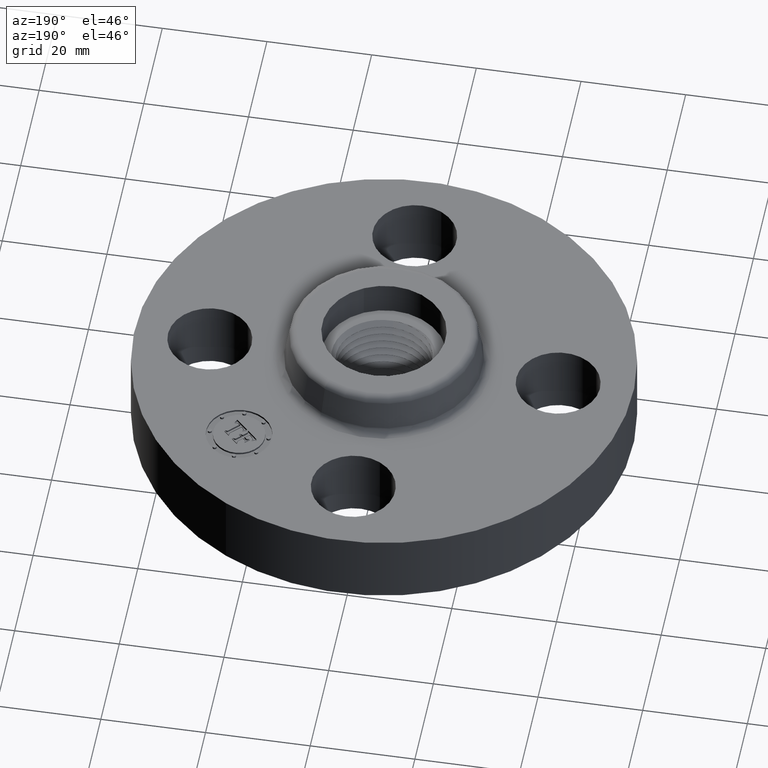
[diagram: clean part render]
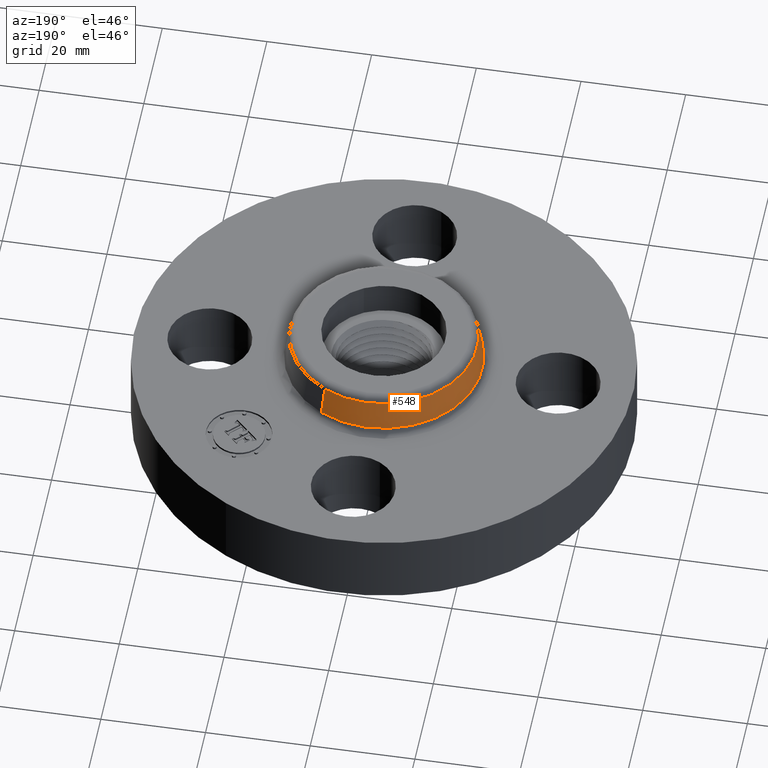
[diagram: same view with one face highlighted and labeled with its STEP entity id]
A machine part, auxiliary view. The second image highlights one B-rep face of the part: STEP entity #548.
In plain terms, the highlighted conical surface has half-angle 10 deg.
Its self-contained STEP definition (entity closure, byte-faithful):
#496=AXIS2_PLACEMENT_3D('Circle Axis2P3D',#494,#495,$) ;
#509=AXIS2_PLACEMENT_3D('Cone Axis2P3D',#506,#507,#508) ;
#539=AXIS2_PLACEMENT_3D('Circle Axis2P3D',#537,#538,$) ;
#467=CARTESIAN_POINT('Vertex',(0.355377782267,0.650514667009,0.609581109342)) ;
#474=CARTESIAN_POINT('Vertex',(-0.355377782267,-0.650514667009,0.609581109342)) ;
#494=CARTESIAN_POINT('Axis2P3D Location',(0.,0.,0.609581109342)) ;
#506=CARTESIAN_POINT('Axis2P3D Location',(0.,0.,0.830418890663)) ;
#511=CARTESIAN_POINT('Line Origine',(0.346043448723,0.633428284067,0.720000000003)) ;
#515=CARTESIAN_POINT('Vertex',(0.336709115179,0.616341901124,0.830418890663)) ;
#522=CARTESIAN_POINT('Vertex',(-0.336709115179,-0.616341901124,0.830418890663)) ;
#525=CARTESIAN_POINT('Line Origine',(-0.346043448723,-0.633428284067,0.720000000003)) ;
#537=CARTESIAN_POINT('Axis2P3D Location',(0.,0.,0.830418890663)) ;
#495=DIRECTION('Axis2P3D Direction',(0.,0.,-0.0393700787402)) ;
#507=DIRECTION('Axis2P3D Direction',(0.,0.,-0.0393700787402)) ;
#508=DIRECTION('Axis2P3D XDirection',(-0.0188750212049,-0.0345504945626,0.)) ;
#512=DIRECTION('Vector Direction',(0.00327761303565,0.00599963041829,-0.03877195878)) ;
#526=DIRECTION('Vector Direction',(-0.00327761303565,-0.00599963041829,-0.03877195878)) ;
#538=DIRECTION('Axis2P3D Direction',(0.,0.,-0.0393700787402)) ;
#513=VECTOR('Line Direction',#512,0.0393700787402) ;
#527=VECTOR('Line Direction',#526,0.0393700787402) ;
#543=ORIENTED_EDGE('',*,*,#498,.F.) ;
#544=ORIENTED_EDGE('',*,*,#529,.T.) ;
#545=ORIENTED_EDGE('',*,*,#541,.T.) ;
#546=ORIENTED_EDGE('',*,*,#517,.F.) ;
#548=ADVANCED_FACE('PartBody',(#547),#510,.T.) ;
#497=CIRCLE('generated circle',#496,0.741257512693) ;
#540=CIRCLE('generated circle',#539,0.702317853486) ;
#510=CONICAL_SURFACE('Cone',#509,0.702317853486,0.174532925199) ;
#498=EDGE_CURVE('',#475,#468,#497,.T.) ;
#517=EDGE_CURVE('',#468,#516,#514,.F.) ;
#529=EDGE_CURVE('',#475,#523,#528,.F.) ;
#541=EDGE_CURVE('',#523,#516,#540,.T.) ;
#542=EDGE_LOOP('',(#543,#544,#545,#546)) ;
#547=FACE_OUTER_BOUND('',#542,.T.) ;
#514=LINE('Line',#511,#513) ;
#528=LINE('Line',#525,#527) ;
#468=VERTEX_POINT('',#467) ;
#475=VERTEX_POINT('',#474) ;
#516=VERTEX_POINT('',#515) ;
#523=VERTEX_POINT('',#522) ;